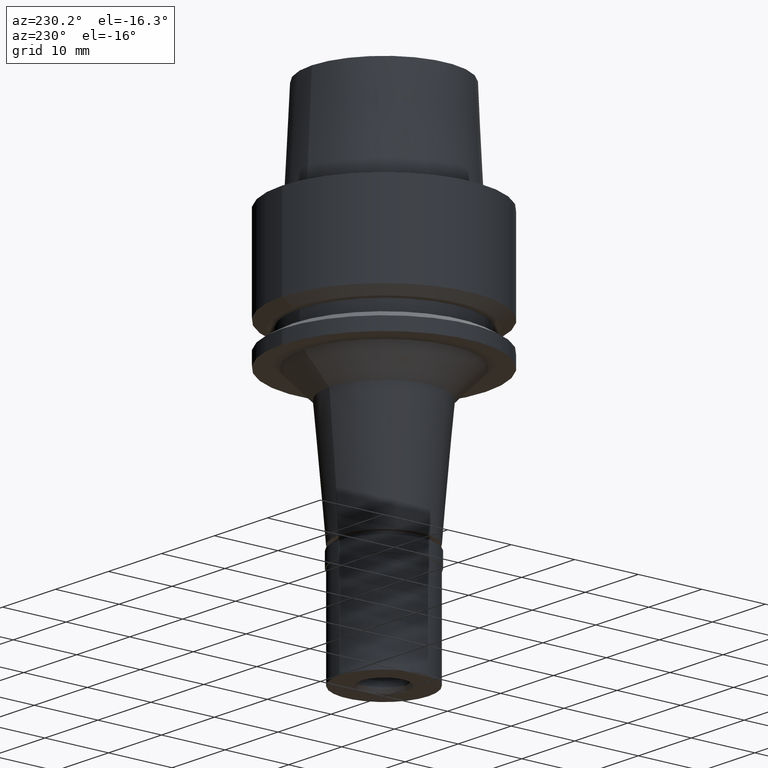
[diagram: clean part render]
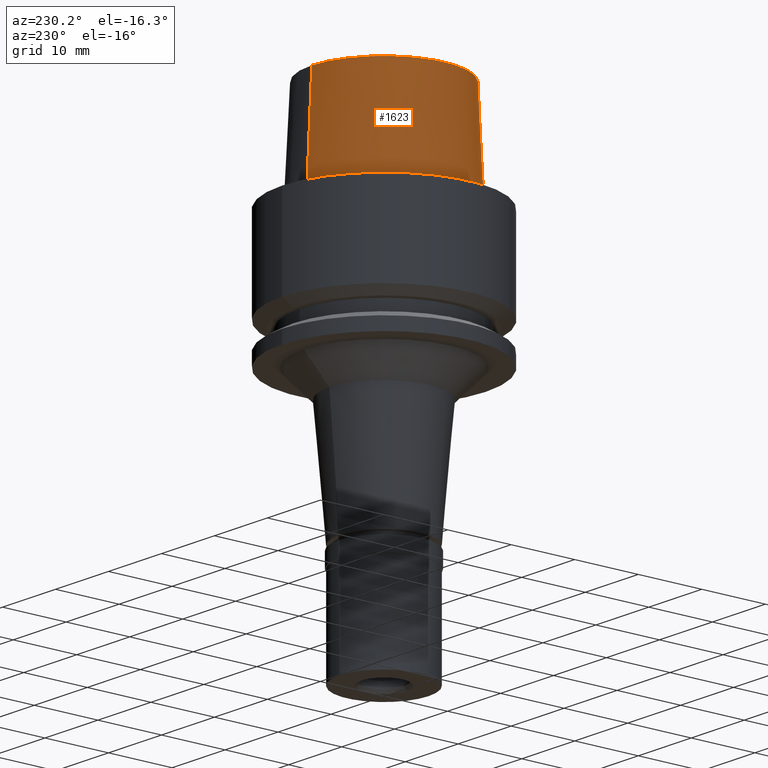
[diagram: same view with one face highlighted and labeled with its STEP entity id]
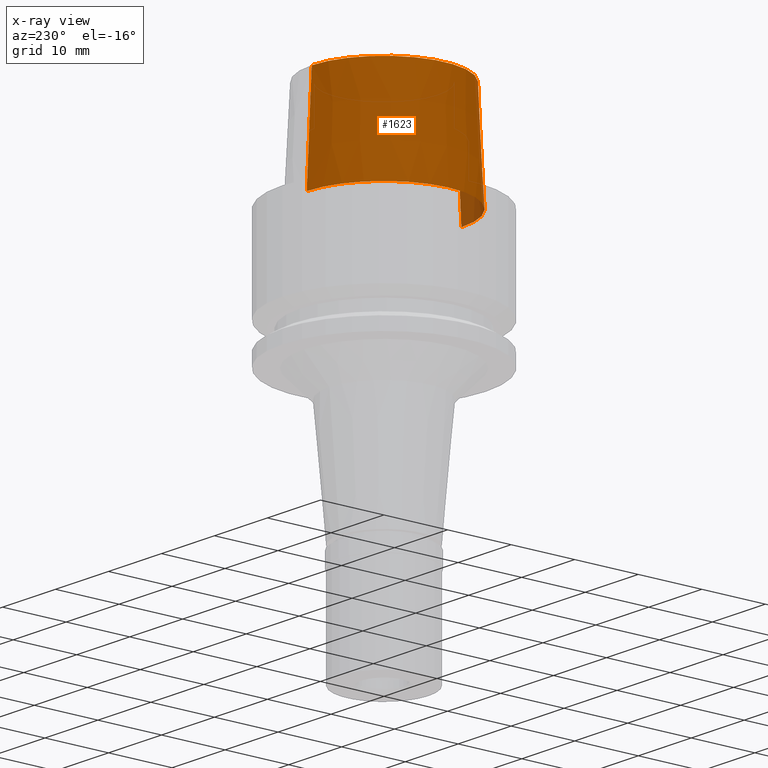
[diagram: x-ray of the same camera — body ghosted, the highlighted face saturated]
A machine part, auxiliary view. The second image highlights one B-rep face of the part: STEP entity #1623.
The next image is the same camera in x-ray: the body ghosted, the highlighted face saturated — about 3% of this face is hidden behind the body in this view.
In plain terms, the highlighted conical surface has half-angle 2.862 deg.
Its self-contained STEP definition (entity closure, byte-faithful):
#10 = CARTESIAN_POINT ( 'NONE',  ( 0.0000000000000000000, 12.15999970738999991, 3.907985046680999726E-14 ) ) ;
#23 = CARTESIAN_POINT ( 'NONE',  ( 0.0000000000000000000, 0.0000000000000000000, 8.000000000000000000 ) ) ;
#69 = DIRECTION ( 'NONE',  ( 0.0000000000000000000, 1.000000000000000000, 0.0000000000000000000 ) ) ;
#100 = CARTESIAN_POINT ( 'NONE',  ( 0.0000000000000000000, -12.15999970738999991, 1.989519660127999812E-13 ) ) ;
#167 = CARTESIAN_POINT ( 'NONE',  ( 0.0000000000000000000, 11.36000117044000035, 16.00000000000000000 ) ) ;
#201 = CARTESIAN_POINT ( 'NONE',  ( 0.0000000000000000000, 0.0000000000000000000, 16.00000000000000000 ) ) ;
#278 = EDGE_CURVE ( 'NONE', #2660, #1908, #2367, .T. ) ;
#332 = CARTESIAN_POINT ( 'NONE',  ( 0.0000000000000000000, -11.36000117044000035, 16.00000000000000000 ) ) ;
#377 = CIRCLE ( 'NONE', #2600, 11.36000117044999946 ) ;
#393 = CARTESIAN_POINT ( 'NONE',  ( 0.0000000000000000000, -11.36000117044000035, 16.00000000000000000 ) ) ;
#420 = VECTOR ( 'NONE', #1696, 999.9999999999998863 ) ;
#501 = AXIS2_PLACEMENT_3D ( 'NONE', #23, #1309, #1922 ) ;
#519 = DIRECTION ( 'NONE',  ( 0.0000000000000000000, -0.04993752584492938684, -0.9987523434327887362 ) ) ;
#811 = VERTEX_POINT ( 'NONE', #167 ) ;
#829 = LINE ( 'NONE', #1678, #420 ) ;
#831 = VECTOR ( 'NONE', #519, 999.9999999999998863 ) ;
#978 = CONICAL_SURFACE ( 'NONE', #501, 11.76000043892000058, 0.04995830450907576964 ) ;
#1043 = DIRECTION ( 'NONE',  ( 0.0000000000000000000, -1.000000000000000000, 0.0000000000000000000 ) ) ;
#1083 = ORIENTED_EDGE ( 'NONE', *, *, #278, .F. ) ;
#1230 = DIRECTION ( 'NONE',  ( 0.0000000000000000000, 0.0000000000000000000, -1.000000000000000000 ) ) ;
#1298 = ORIENTED_EDGE ( 'NONE', *, *, #1777, .T. ) ;
#1309 = DIRECTION ( 'NONE',  ( 0.0000000000000000000, 0.0000000000000000000, -1.000000000000000000 ) ) ;
#1490 = EDGE_LOOP ( 'NONE', ( #2302, #1083, #2083, #1298 ) ) ;
#1623 = ADVANCED_FACE ( 'NONE', ( #2547 ), #978, .T. ) ;
#1678 = CARTESIAN_POINT ( 'NONE',  ( 0.0000000000000000000, 11.36000117044000035, 16.00000000000000000 ) ) ;
#1696 = DIRECTION ( 'NONE',  ( 0.0000000000000000000, 0.04993752584492938684, -0.9987523434327887362 ) ) ;
#1777 = EDGE_CURVE ( 'NONE', #811, #2103, #829, .T. ) ;
#1825 = CIRCLE ( 'NONE', #2604, 12.15999970738999991 ) ;
#1908 = VERTEX_POINT ( 'NONE', #100 ) ;
#1922 = DIRECTION ( 'NONE',  ( 0.0000000000000000000, -1.000000000000000000, 0.0000000000000000000 ) ) ;
#1957 = DIRECTION ( 'NONE',  ( 0.0000000000000000000, 0.0000000000000000000, 1.000000000000000000 ) ) ;
#2083 = ORIENTED_EDGE ( 'NONE', *, *, #2101, .T. ) ;
#2101 = EDGE_CURVE ( 'NONE', #2660, #811, #377, .T. ) ;
#2103 = VERTEX_POINT ( 'NONE', #10 ) ;
#2276 = EDGE_CURVE ( 'NONE', #2103, #1908, #1825, .T. ) ;
#2302 = ORIENTED_EDGE ( 'NONE', *, *, #2276, .T. ) ;
#2367 = LINE ( 'NONE', #332, #831 ) ;
#2547 = FACE_OUTER_BOUND ( 'NONE', #1490, .T. ) ;
#2552 = CARTESIAN_POINT ( 'NONE',  ( 0.0000000000000000000, 0.0000000000000000000, 1.989519660127999812E-13 ) ) ;
#2600 = AXIS2_PLACEMENT_3D ( 'NONE', #201, #1230, #1043 ) ;
#2604 = AXIS2_PLACEMENT_3D ( 'NONE', #2552, #1957, #69 ) ;
#2660 = VERTEX_POINT ( 'NONE', #393 ) ;